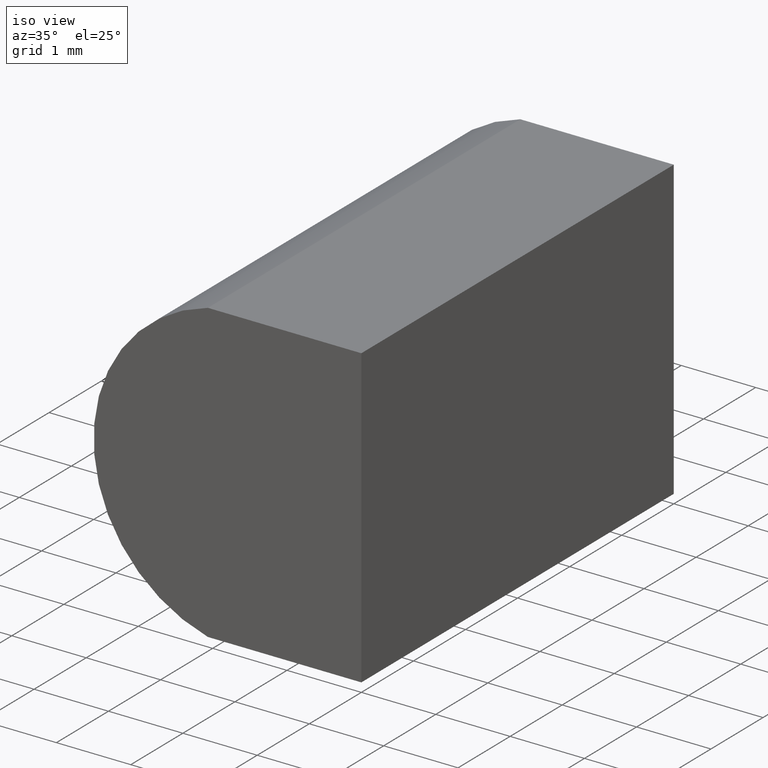
[diagram: clean part render]
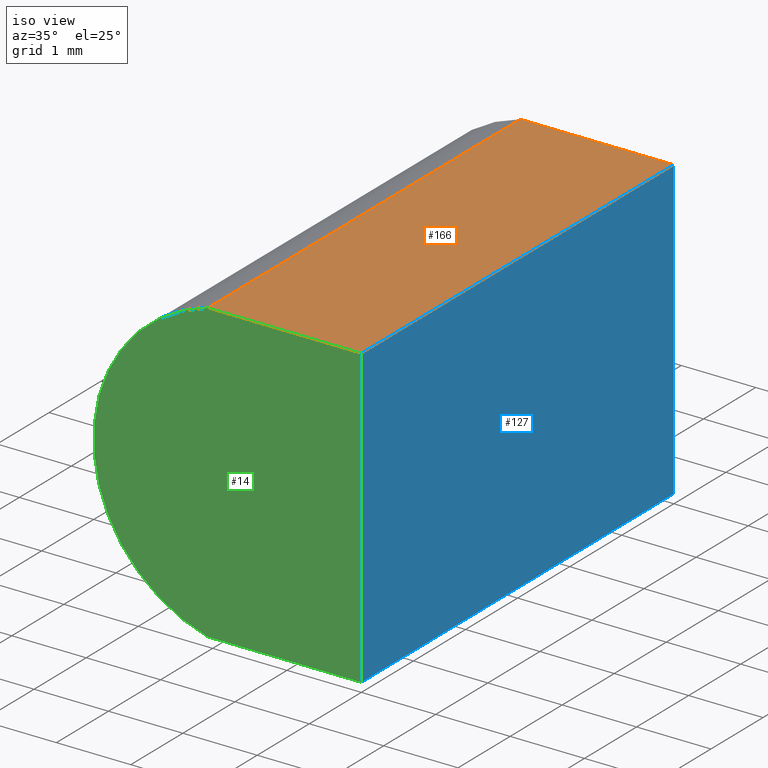
[diagram: same view with three faces highlighted in distinct colors, each labeled with its STEP entity id]
A machine part, iso view with three faces highlighted in distinct colors.
Their STEP definitions:

[orange] entity #166 — the highlighted planar face has unit normal (0, 0, -1).
#2 = VECTOR ( 'NONE', #83, 1000.000000000000000 ) ;
#9 = VECTOR ( 'NONE', #193, 1000.000000000000000 ) ;
#23 = AXIS2_PLACEMENT_3D ( 'NONE', #165, #79, #98 ) ;
#25 = VECTOR ( 'NONE', #137, 1000.000000000000000 ) ;
#29 = EDGE_CURVE ( 'NONE', #201, #188, #195, .T. ) ;
#32 = CARTESIAN_POINT ( 'NONE',  ( 0.0000000000000000000, 0.0000000000000000000, 4.000000000000000000 ) ) ;
#59 = VERTEX_POINT ( 'NONE', #76 ) ;
#63 = ORIENTED_EDGE ( 'NONE', *, *, #131, .T. ) ;
#73 = CARTESIAN_POINT ( 'NONE',  ( -2.063760245803302000, 6.000000000000000000, 3.999999999999999100 ) ) ;
#76 = CARTESIAN_POINT ( 'NONE',  ( -2.063760245803302000, 0.0000000000000000000, 3.999999999999999100 ) ) ;
#77 = ORIENTED_EDGE ( 'NONE', *, *, #134, .T. ) ;
#79 = DIRECTION ( 'NONE',  ( 4.202822201620565800E-016, 0.0000000000000000000, -1.000000000000000000 ) ) ;
#83 = DIRECTION ( 'NONE',  ( -0.0000000000000000000, -1.000000000000000000, -0.0000000000000000000 ) ) ;
#95 = CARTESIAN_POINT ( 'NONE',  ( 0.0000000000000000000, 6.000000000000000000, 4.000000000000000000 ) ) ;
#98 = DIRECTION ( 'NONE',  ( -1.000000000000000000, 0.0000000000000000000, -4.202822201620565800E-016 ) ) ;
#110 = PLANE ( 'NONE',  #23 ) ;
#112 = CARTESIAN_POINT ( 'NONE',  ( 0.0000000000000000000, 0.0000000000000000000, 4.000000000000000000 ) ) ;
#121 = ORIENTED_EDGE ( 'NONE', *, *, #29, .F. ) ;
#125 = CARTESIAN_POINT ( 'NONE',  ( -2.063760245803302000, 6.000000000000000000, 3.999999999999999100 ) ) ;
#129 = LINE ( 'NONE', #32, #9 ) ;
#131 = EDGE_CURVE ( 'NONE', #201, #59, #176, .T. ) ;
#134 = EDGE_CURVE ( 'NONE', #59, #154, #129, .T. ) ;
#137 = DIRECTION ( 'NONE',  ( -0.0000000000000000000, -1.000000000000000000, -0.0000000000000000000 ) ) ;
#141 = ORIENTED_EDGE ( 'NONE', *, *, #183, .F. ) ;
#143 = CARTESIAN_POINT ( 'NONE',  ( 0.0000000000000000000, 6.000000000000000000, 4.000000000000000000 ) ) ;
#144 = LINE ( 'NONE', #95, #25 ) ;
#146 = EDGE_LOOP ( 'NONE', ( #77, #141, #121, #63 ) ) ;
#154 = VERTEX_POINT ( 'NONE', #112 ) ;
#165 = CARTESIAN_POINT ( 'NONE',  ( 0.0000000000000000000, 6.000000000000000000, 4.000000000000000000 ) ) ;
#166 = ADVANCED_FACE ( 'NONE', ( #167 ), #110, .F. ) ;
#167 = FACE_OUTER_BOUND ( 'NONE', #146, .T. ) ;
#176 = LINE ( 'NONE', #73, #2 ) ;
#180 = CARTESIAN_POINT ( 'NONE',  ( 0.0000000000000000000, 6.000000000000000000, 4.000000000000000000 ) ) ;
#183 = EDGE_CURVE ( 'NONE', #188, #154, #144, .T. ) ;
#188 = VERTEX_POINT ( 'NONE', #180 ) ;
#191 = VECTOR ( 'NONE', #199, 1000.000000000000000 ) ;
#193 = DIRECTION ( 'NONE',  ( 1.000000000000000000, -0.0000000000000000000, 4.202822201620566300E-016 ) ) ;
#195 = LINE ( 'NONE', #143, #191 ) ;
#199 = DIRECTION ( 'NONE',  ( 1.000000000000000000, -0.0000000000000000000, 4.202822201620566300E-016 ) ) ;
#201 = VERTEX_POINT ( 'NONE', #125 ) ;

[blue] entity #127 — the highlighted planar face has unit normal (-1, 0, 0).
#22 = VERTEX_POINT ( 'NONE', #80 ) ;
#25 = VECTOR ( 'NONE', #137, 1000.000000000000000 ) ;
#27 = ORIENTED_EDGE ( 'NONE', *, *, #78, .F. ) ;
#46 = CARTESIAN_POINT ( 'NONE',  ( 0.0000000000000000000, 0.0000000000000000000, 0.0000000000000000000 ) ) ;
#54 = LINE ( 'NONE', #158, #177 ) ;
#55 = DIRECTION ( 'NONE',  ( -0.0000000000000000000, -0.0000000000000000000, -1.000000000000000000 ) ) ;
#67 = ORIENTED_EDGE ( 'NONE', *, *, #186, .T. ) ;
#78 = EDGE_CURVE ( 'NONE', #124, #22, #84, .T. ) ;
#80 = CARTESIAN_POINT ( 'NONE',  ( 0.0000000000000000000, 0.0000000000000000000, 0.0000000000000000000 ) ) ;
#84 = LINE ( 'NONE', #200, #163 ) ;
#95 = CARTESIAN_POINT ( 'NONE',  ( 0.0000000000000000000, 6.000000000000000000, 4.000000000000000000 ) ) ;
#97 = CARTESIAN_POINT ( 'NONE',  ( 0.0000000000000000000, 6.000000000000000000, 0.0000000000000000000 ) ) ;
#102 = LINE ( 'NONE', #46, #184 ) ;
#106 = PLANE ( 'NONE',  #187 ) ;
#112 = CARTESIAN_POINT ( 'NONE',  ( 0.0000000000000000000, 0.0000000000000000000, 4.000000000000000000 ) ) ;
#124 = VERTEX_POINT ( 'NONE', #152 ) ;
#127 = ADVANCED_FACE ( 'NONE', ( #136 ), #106, .F. ) ;
#128 = DIRECTION ( 'NONE',  ( -0.0000000000000000000, -0.0000000000000000000, -1.000000000000000000 ) ) ;
#135 = ORIENTED_EDGE ( 'NONE', *, *, #173, .F. ) ;
#136 = FACE_OUTER_BOUND ( 'NONE', #155, .T. ) ;
#137 = DIRECTION ( 'NONE',  ( -0.0000000000000000000, -1.000000000000000000, -0.0000000000000000000 ) ) ;
#144 = LINE ( 'NONE', #95, #25 ) ;
#152 = CARTESIAN_POINT ( 'NONE',  ( 0.0000000000000000000, 6.000000000000000000, 0.0000000000000000000 ) ) ;
#153 = DIRECTION ( 'NONE',  ( 0.0000000000000000000, 0.0000000000000000000, 1.000000000000000000 ) ) ;
#154 = VERTEX_POINT ( 'NONE', #112 ) ;
#155 = EDGE_LOOP ( 'NONE', ( #67, #27, #135, #189 ) ) ;
#158 = CARTESIAN_POINT ( 'NONE',  ( 0.0000000000000000000, 6.000000000000000000, 0.0000000000000000000 ) ) ;
#163 = VECTOR ( 'NONE', #196, 1000.000000000000000 ) ;
#173 = EDGE_CURVE ( 'NONE', #188, #124, #54, .T. ) ;
#177 = VECTOR ( 'NONE', #55, 1000.000000000000000 ) ;
#180 = CARTESIAN_POINT ( 'NONE',  ( 0.0000000000000000000, 6.000000000000000000, 4.000000000000000000 ) ) ;
#182 = DIRECTION ( 'NONE',  ( -1.000000000000000000, 0.0000000000000000000, 0.0000000000000000000 ) ) ;
#183 = EDGE_CURVE ( 'NONE', #188, #154, #144, .T. ) ;
#184 = VECTOR ( 'NONE', #128, 1000.000000000000000 ) ;
#186 = EDGE_CURVE ( 'NONE', #154, #22, #102, .T. ) ;
#187 = AXIS2_PLACEMENT_3D ( 'NONE', #97, #182, #153 ) ;
#188 = VERTEX_POINT ( 'NONE', #180 ) ;
#189 = ORIENTED_EDGE ( 'NONE', *, *, #183, .T. ) ;
#196 = DIRECTION ( 'NONE',  ( -0.0000000000000000000, -1.000000000000000000, -0.0000000000000000000 ) ) ;
#200 = CARTESIAN_POINT ( 'NONE',  ( 0.0000000000000000000, 6.000000000000000000, 0.0000000000000000000 ) ) ;

[green] entity #14 — the highlighted planar face has unit normal (0, 1, 0).
#9 = VECTOR ( 'NONE', #193, 1000.000000000000000 ) ;
#12 = CARTESIAN_POINT ( 'NONE',  ( 0.0000000000000000000, 0.0000000000000000000, 0.0000000000000000000 ) ) ;
#14 = ADVANCED_FACE ( 'NONE', ( #24 ), #130, .F. ) ;
#22 = VERTEX_POINT ( 'NONE', #80 ) ;
#24 = FACE_OUTER_BOUND ( 'NONE', #85, .T. ) ;
#31 = DIRECTION ( 'NONE',  ( 0.0000000000000000000, 1.000000000000000000, 0.0000000000000000000 ) ) ;
#32 = CARTESIAN_POINT ( 'NONE',  ( 0.0000000000000000000, 0.0000000000000000000, 4.000000000000000000 ) ) ;
#46 = CARTESIAN_POINT ( 'NONE',  ( 0.0000000000000000000, 0.0000000000000000000, 0.0000000000000000000 ) ) ;
#48 = CIRCLE ( 'NONE', #92, 2.069999999999999800 ) ;
#52 = CARTESIAN_POINT ( 'NONE',  ( -2.063760245803301500, 0.0000000000000000000, 4.336808689942017700E-016 ) ) ;
#56 = EDGE_CURVE ( 'NONE', #109, #59, #48, .T. ) ;
#59 = VERTEX_POINT ( 'NONE', #76 ) ;
#65 = DIRECTION ( 'NONE',  ( -1.000000000000000000, 0.0000000000000000000, 4.202822201620566300E-016 ) ) ;
#66 = ORIENTED_EDGE ( 'NONE', *, *, #186, .F. ) ;
#68 = ORIENTED_EDGE ( 'NONE', *, *, #116, .F. ) ;
#71 = DIRECTION ( 'NONE',  ( 0.0000000000000000000, -0.0000000000000000000, 1.000000000000000000 ) ) ;
#76 = CARTESIAN_POINT ( 'NONE',  ( -2.063760245803302000, 0.0000000000000000000, 3.999999999999999100 ) ) ;
#80 = CARTESIAN_POINT ( 'NONE',  ( 0.0000000000000000000, 0.0000000000000000000, 0.0000000000000000000 ) ) ;
#85 = EDGE_LOOP ( 'NONE', ( #68, #66, #117, #107 ) ) ;
#91 = DIRECTION ( 'NONE',  ( 0.0000000000000000000, 0.0000000000000000000, 1.000000000000000000 ) ) ;
#92 = AXIS2_PLACEMENT_3D ( 'NONE', #203, #31, #91 ) ;
#99 = AXIS2_PLACEMENT_3D ( 'NONE', #161, #114, #71 ) ;
#102 = LINE ( 'NONE', #46, #184 ) ;
#107 = ORIENTED_EDGE ( 'NONE', *, *, #56, .F. ) ;
#109 = VERTEX_POINT ( 'NONE', #52 ) ;
#112 = CARTESIAN_POINT ( 'NONE',  ( 0.0000000000000000000, 0.0000000000000000000, 4.000000000000000000 ) ) ;
#114 = DIRECTION ( 'NONE',  ( 0.0000000000000000000, 1.000000000000000000, 0.0000000000000000000 ) ) ;
#116 = EDGE_CURVE ( 'NONE', #22, #109, #162, .T. ) ;
#117 = ORIENTED_EDGE ( 'NONE', *, *, #134, .F. ) ;
#128 = DIRECTION ( 'NONE',  ( -0.0000000000000000000, -0.0000000000000000000, -1.000000000000000000 ) ) ;
#129 = LINE ( 'NONE', #32, #9 ) ;
#130 = PLANE ( 'NONE',  #99 ) ;
#132 = VECTOR ( 'NONE', #65, 1000.000000000000000 ) ;
#134 = EDGE_CURVE ( 'NONE', #59, #154, #129, .T. ) ;
#154 = VERTEX_POINT ( 'NONE', #112 ) ;
#161 = CARTESIAN_POINT ( 'NONE',  ( -1.529999999999999600, 0.0000000000000000000, 2.000000000000000000 ) ) ;
#162 = LINE ( 'NONE', #12, #132 ) ;
#184 = VECTOR ( 'NONE', #128, 1000.000000000000000 ) ;
#186 = EDGE_CURVE ( 'NONE', #154, #22, #102, .T. ) ;
#193 = DIRECTION ( 'NONE',  ( 1.000000000000000000, -0.0000000000000000000, 4.202822201620566300E-016 ) ) ;
#203 = CARTESIAN_POINT ( 'NONE',  ( -1.529999999999999600, 0.0000000000000000000, 2.000000000000000000 ) ) ;